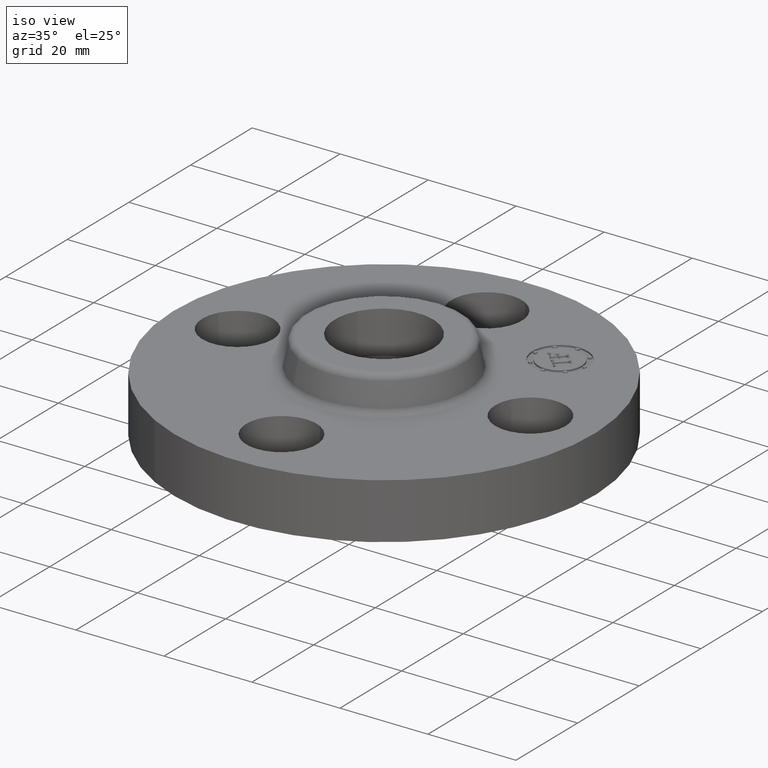
[diagram: clean part render]
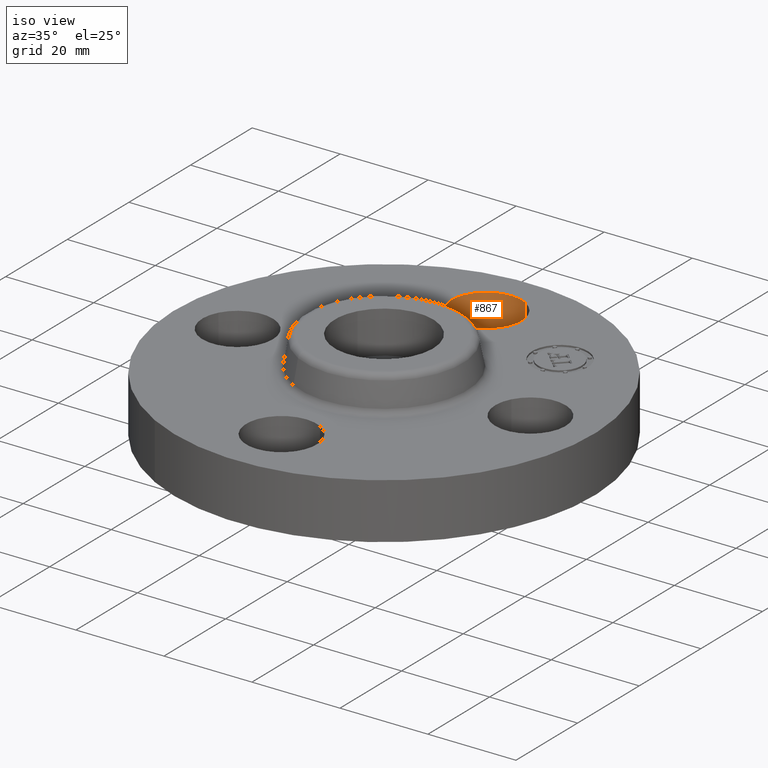
[diagram: same view with one face highlighted and labeled with its STEP entity id]
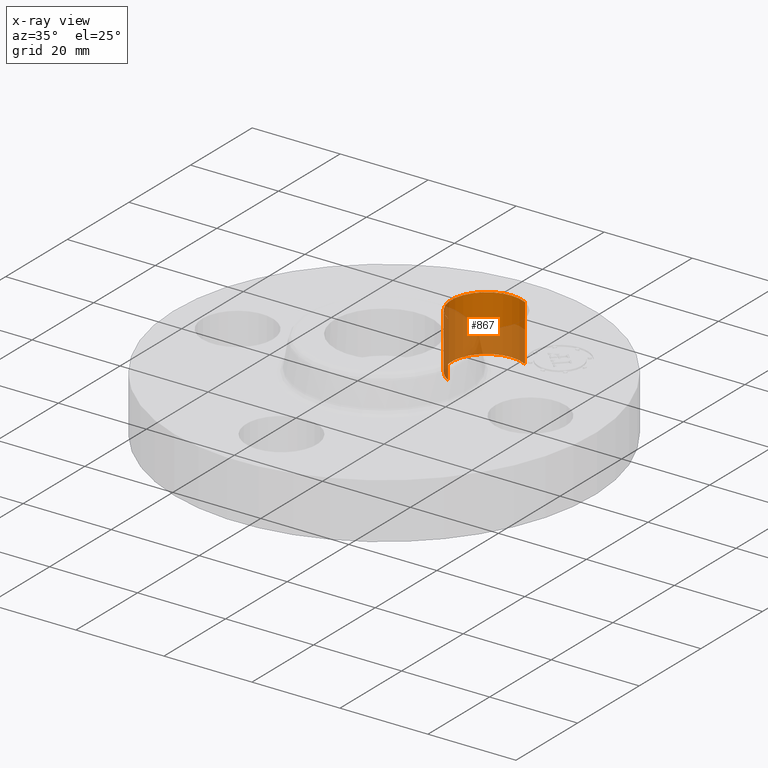
[diagram: x-ray of the same camera — body ghosted, the highlighted face saturated]
A machine part, iso view. The second image highlights one B-rep face of the part: STEP entity #867.
The next image is the same camera in x-ray: the body ghosted, the highlighted face saturated — about 58% of this face is hidden behind the body in this view.
In plain terms, the highlighted cylindrical surface (partial cylindrical patch) has radius 8.001 mm, axis along (-0, 0, -1).
Its self-contained STEP definition (entity closure, byte-faithful):
#443=AXIS2_PLACEMENT_3D('Circle Axis2P3D',#441,#442,$) ;
#828=AXIS2_PLACEMENT_3D('Cylinder Axis2P3D',#825,#826,#827) ;
#441=CARTESIAN_POINT('Axis2P3D Location',(6.99353086378E-017,1.31000000001,0.)) ;
#445=CARTESIAN_POINT('Vertex',(-0.151019044675,1.03356149304,0.)) ;
#447=CARTESIAN_POINT('Vertex',(0.151019044675,1.58643850697,0.)) ;
#825=CARTESIAN_POINT('Axis2P3D Location',(-2.40643096033E-016,1.31000000001,0.496062992128)) ;
#830=CARTESIAN_POINT('Line Origine',(-0.151019044661,1.03356149301,0.250000000001)) ;
#834=CARTESIAN_POINT('Vertex',(-0.151019044659,1.03356149301,0.499999999987)) ;
#837=CARTESIAN_POINT('Line Origine',(0.151019044661,1.58643850701,0.250000000001)) ;
#841=CARTESIAN_POINT('Vertex',(0.151019044661,1.58643850701,0.499999999987)) ;
#845=CARTESIAN_POINT('Control Point',(-0.151019044659,1.03356149301,0.499999999987)) ;
#846=CARTESIAN_POINT('Control Point',(-0.194441903797,1.05728350908,0.499999999988)) ;
#847=CARTESIAN_POINT('Control Point',(-0.233206955973,1.08953158359,0.499999999989)) ;
#848=CARTESIAN_POINT('Control Point',(-0.265074533341,1.12909312141,0.49999999999)) ;
#849=CARTESIAN_POINT('Control Point',(-0.311580534084,1.21857978084,0.499999999991)) ;
#850=CARTESIAN_POINT('Control Point',(-0.320796932275,1.31900750771,0.499999999992)) ;
#851=CARTESIAN_POINT('Control Point',(-0.315356480668,1.36951551943,0.499999999993)) ;
#852=CARTESIAN_POINT('Control Point',(-0.284964565451,1.46567685163,0.499999999995)) ;
#853=CARTESIAN_POINT('Control Point',(-0.220468416417,1.54320695598,0.499999999996)) ;
#854=CARTESIAN_POINT('Control Point',(-0.180906878602,1.57507453335,0.499999999997)) ;
#855=CARTESIAN_POINT('Control Point',(-0.0914202191719,1.62158053409,0.499999999998)) ;
#856=CARTESIAN_POINT('Control Point',(0.0090075077032,1.63079693228,0.5)) ;
#857=CARTESIAN_POINT('Control Point',(0.0595155194239,1.62535648068,0.500000000001)) ;
#858=CARTESIAN_POINT('Control Point',(0.107596185523,1.61016052307,0.500000000001)) ;
#859=CARTESIAN_POINT('Control Point',(0.151019044661,1.58643850701,0.500000000002)) ;
#442=DIRECTION('Axis2P3D Direction',(0.,0.,-0.0393700787402)) ;
#826=DIRECTION('Axis2P3D Direction',(-0.,0.,-0.0393700787402)) ;
#827=DIRECTION('Axis2P3D XDirection',(-0.0188750212047,-0.0345504945627,0.)) ;
#831=DIRECTION('Vector Direction',(0.,0.,-0.0393700787402)) ;
#838=DIRECTION('Vector Direction',(0.,0.,-0.0393700787402)) ;
#832=VECTOR('Line Direction',#831,0.0393700787402) ;
#839=VECTOR('Line Direction',#838,0.0393700787402) ;
#862=ORIENTED_EDGE('',*,*,#836,.F.) ;
#863=ORIENTED_EDGE('',*,*,#449,.T.) ;
#864=ORIENTED_EDGE('',*,*,#843,.T.) ;
#865=ORIENTED_EDGE('',*,*,#860,.F.) ;
#867=ADVANCED_FACE('PartBody',(#866),#829,.F.) ;
#844=B_SPLINE_CURVE_WITH_KNOTS('',5,(#845,#846,#847,#848,#849,#850,#851,#852,#853,#854,#855,#856,#857,#858,#859),.UNSPECIFIED.,.F.,.U.,(6,3,3,3,6),(-12.5679414107,-6.28397070537,0.,6.28397070537,12.5679414107),.UNSPECIFIED.) ;
#444=CIRCLE('generated circle',#443,0.314999999981) ;
#829=CYLINDRICAL_SURFACE('generated cylinder',#828,0.315000000001) ;
#449=EDGE_CURVE('',#446,#448,#444,.T.) ;
#836=EDGE_CURVE('',#446,#835,#833,.F.) ;
#843=EDGE_CURVE('',#448,#842,#840,.F.) ;
#860=EDGE_CURVE('',#835,#842,#844,.T.) ;
#861=EDGE_LOOP('',(#862,#863,#864,#865)) ;
#866=FACE_OUTER_BOUND('',#861,.T.) ;
#833=LINE('Line',#830,#832) ;
#840=LINE('Line',#837,#839) ;
#446=VERTEX_POINT('',#445) ;
#448=VERTEX_POINT('',#447) ;
#835=VERTEX_POINT('',#834) ;
#842=VERTEX_POINT('',#841) ;